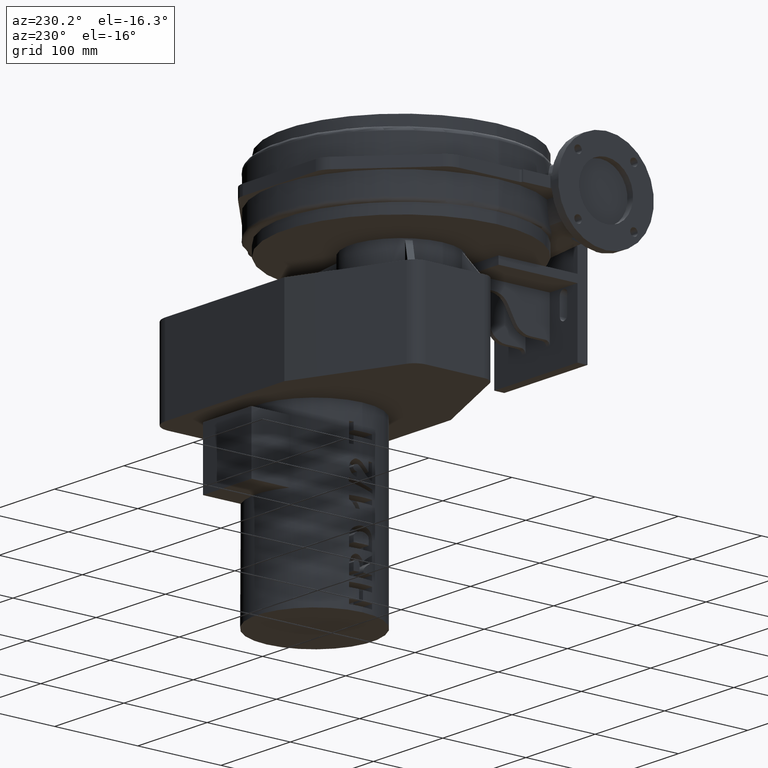
[diagram: clean part render]
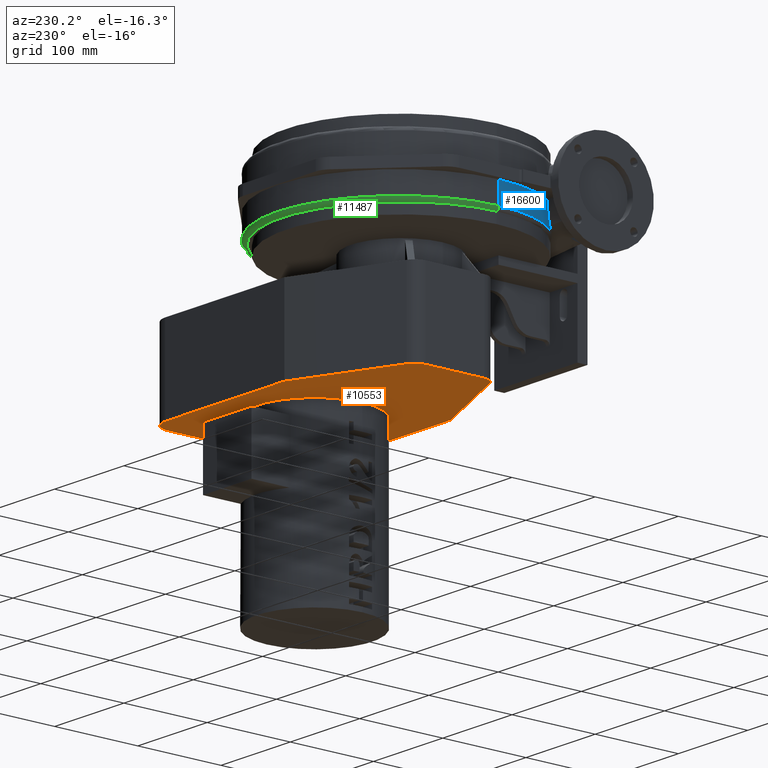
[diagram: same view with three faces highlighted in distinct colors, each labeled with its STEP entity id]
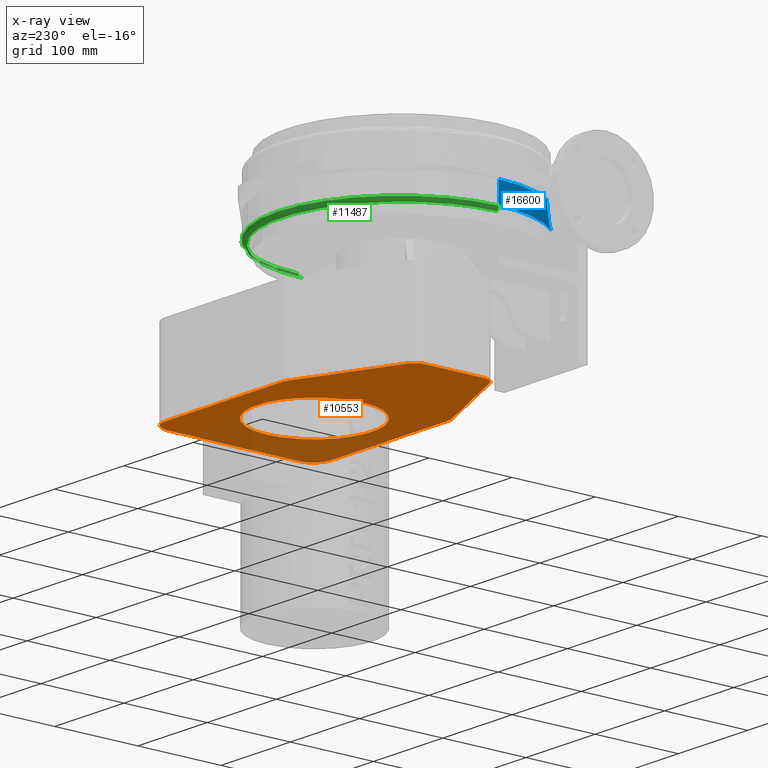
[diagram: x-ray of the same camera — body ghosted, the three highlighted faces saturated]
A machine part, auxiliary view with three faces highlighted in distinct colors.
The next image is the same camera in x-ray (body ghosted, the three faces saturated) — at least one of them is partly hidden behind the body in this view.
Their STEP definitions:

[orange] entity #10553 — the highlighted planar face has unit normal (0, 0, 1).
#1277=CARTESIAN_POINT('',(194.0,8.449784E-015,-176.500000000000000));
#1278=VERTEX_POINT('',#1277);
#1287=CARTESIAN_POINT('',(56.0,8.449784E-015,-176.500000000000000));
#1288=VERTEX_POINT('',#1287);
#1289=CARTESIAN_POINT('',(125.0,7.789082E-029,-176.500000000000000));
#1290=DIRECTION('',(0.0,0.0,1.0));
#1291=DIRECTION('',(1.0,0.0,0.0));
#1292=AXIS2_PLACEMENT_3D('',#1289,#1290,#1291);
#1293=CIRCLE('',#1292,69.0);
#1294=EDGE_CURVE('',#1288,#1278,#1293,.T.);
#5609=CARTESIAN_POINT('',(125.0,7.789082E-029,-176.500000000000000));
#5610=DIRECTION('',(0.0,0.0,1.0));
#5611=DIRECTION('',(1.0,0.0,0.0));
#5612=AXIS2_PLACEMENT_3D('',#5609,#5610,#5611);
#5613=CIRCLE('',#5612,69.0);
#5614=EDGE_CURVE('',#1278,#1288,#5613,.T.);
#10378=CARTESIAN_POINT('',(-77.500000000000014,-35.300512986267947,-176.500000000000000));
#10379=VERTEX_POINT('',#10378);
#10380=CARTESIAN_POINT('',(-67.818629719577089,-50.0,-176.500000000000000));
#10381=VERTEX_POINT('',#10380);
#10382=CARTESIAN_POINT('',(-61.499999999999993,-35.300512986267947,-176.500000000000000));
#10383=DIRECTION('',(0.0,0.0,1.000000000000000));
#10384=DIRECTION('',(-0.394914357473568,-0.918717938358253,0.0));
#10385=AXIS2_PLACEMENT_3D('',#10382,#10383,#10384);
#10386=CIRCLE('',#10385,16.000000000000018);
#10387=EDGE_CURVE('',#10379,#10381,#10386,.T.);
#10468=CARTESIAN_POINT('',(90.695104656668079,43.740582263557911,-176.500000000000000));
#10469=DIRECTION('',(0.0,0.0,1.0));
#10470=DIRECTION('',(1.0,0.0,0.0));
#10471=AXIS2_PLACEMENT_3D('',#10468,#10469,#10470);
#10472=PLANE('',#10471);
#10473=CARTESIAN_POINT('',(48.499999999999979,-100.0,-176.500000000000000));
#10474=VERTEX_POINT('',#10473);
#10475=CARTESIAN_POINT('',(220.500000000000000,-100.0,-176.500000000000000));
#10476=VERTEX_POINT('',#10475);
#10477=CARTESIAN_POINT('',(48.499999999999979,-100.0,-176.500000000000000));
#10478=DIRECTION('',(1.0,0.0,0.0));
#10479=VECTOR('',#10478,172.000000000000030);
#10480=LINE('',#10477,#10479);
#10481=EDGE_CURVE('',#10474,#10476,#10480,.T.);
#10482=ORIENTED_EDGE('',*,*,#10481,.F.);
#10483=CARTESIAN_POINT('',(-67.818629719577089,-50.0,-176.500000000000000));
#10484=DIRECTION('',(0.918717938358253,-0.394914357473568,0.0));
#10485=VECTOR('',#10484,126.609729562305280);
#10486=LINE('',#10483,#10485);
#10487=EDGE_CURVE('',#10381,#10474,#10486,.T.);
#10488=ORIENTED_EDGE('',*,*,#10487,.F.);
#10489=ORIENTED_EDGE('',*,*,#10387,.F.);
#10490=CARTESIAN_POINT('',(-77.500000000000014,35.300512986267947,-176.500000000000000));
#10491=VERTEX_POINT('',#10490);
#10492=CARTESIAN_POINT('',(-77.500000000000014,35.300512986267947,-176.500000000000000));
#10493=DIRECTION('',(0.0,-1.0,0.0));
#10494=VECTOR('',#10493,70.601025972535894);
#10495=LINE('',#10492,#10494);
#10496=EDGE_CURVE('',#10491,#10379,#10495,.T.);
#10497=ORIENTED_EDGE('',*,*,#10496,.F.);
#10498=CARTESIAN_POINT('',(-67.818629719577089,50.0,-176.500000000000000));
#10499=VERTEX_POINT('',#10498);
#10500=CARTESIAN_POINT('',(-61.499999999999993,35.300512986267947,-176.500000000000000));
#10501=DIRECTION('',(0.0,0.0,1.0));
#10502=DIRECTION('',(-1.0,0.0,0.0));
#10503=AXIS2_PLACEMENT_3D('',#10500,#10501,#10502);
#10504=CIRCLE('',#10503,16.000000000000021);
#10505=EDGE_CURVE('',#10499,#10491,#10504,.T.);
#10506=ORIENTED_EDGE('',*,*,#10505,.F.);
#10507=CARTESIAN_POINT('',(48.499999999999979,100.0,-176.500000000000000));
#10508=VERTEX_POINT('',#10507);
#10509=CARTESIAN_POINT('',(48.499999999999979,100.0,-176.500000000000000));
#10510=DIRECTION('',(-0.918717938358253,-0.394914357473568,0.0));
#10511=VECTOR('',#10510,126.609729562305280);
#10512=LINE('',#10509,#10511);
#10513=EDGE_CURVE('',#10508,#10499,#10512,.T.);
#10514=ORIENTED_EDGE('',*,*,#10513,.F.);
#10515=CARTESIAN_POINT('',(220.500000000000000,100.0,-176.500000000000000));
#10516=VERTEX_POINT('',#10515);
#10517=CARTESIAN_POINT('',(220.500000000000000,100.0,-176.500000000000000));
#10518=DIRECTION('',(-1.0,0.0,0.0));
#10519=VECTOR('',#10518,172.000000000000030);
#10520=LINE('',#10517,#10519);
#10521=EDGE_CURVE('',#10516,#10508,#10520,.T.);
#10522=ORIENTED_EDGE('',*,*,#10521,.F.);
#10523=CARTESIAN_POINT('',(242.500000000000000,78.0,-176.500000000000000));
#10524=VERTEX_POINT('',#10523);
#10525=CARTESIAN_POINT('',(220.500000000000000,78.0,-176.500000000000000));
#10526=DIRECTION('',(0.0,0.0,1.0));
#10527=DIRECTION('',(0.0,1.0,0.0));
#10528=AXIS2_PLACEMENT_3D('',#10525,#10526,#10527);
#10529=CIRCLE('',#10528,22.0);
#10530=EDGE_CURVE('',#10524,#10516,#10529,.T.);
#10531=ORIENTED_EDGE('',*,*,#10530,.F.);
#10532=CARTESIAN_POINT('',(242.500000000000000,-78.0,-176.500000000000000));
#10533=VERTEX_POINT('',#10532);
#10534=CARTESIAN_POINT('',(242.500000000000000,-78.0,-176.500000000000000));
#10535=DIRECTION('',(0.0,1.0,0.0));
#10536=VECTOR('',#10535,156.0);
#10537=LINE('',#10534,#10536);
#10538=EDGE_CURVE('',#10533,#10524,#10537,.T.);
#10539=ORIENTED_EDGE('',*,*,#10538,.F.);
#10540=CARTESIAN_POINT('',(220.500000000000000,-78.0,-176.500000000000000));
#10541=DIRECTION('',(0.0,0.0,1.0));
#10542=DIRECTION('',(1.0,0.0,0.0));
#10543=AXIS2_PLACEMENT_3D('',#10540,#10541,#10542);
#10544=CIRCLE('',#10543,22.0);
#10545=EDGE_CURVE('',#10476,#10533,#10544,.T.);
#10546=ORIENTED_EDGE('',*,*,#10545,.F.);
#10547=EDGE_LOOP('',(#10482,#10488,#10489,#10497,#10506,#10514,#10522,#10531,#10539,#10546));
#10548=FACE_OUTER_BOUND('',#10547,.T.);
#10549=ORIENTED_EDGE('',*,*,#1294,.T.);
#10550=ORIENTED_EDGE('',*,*,#5614,.T.);
#10551=EDGE_LOOP('',(#10549,#10550));
#10552=FACE_BOUND('',#10551,.T.);
#10553=ADVANCED_FACE('',(#10548,#10552),#10472,.F.);

[blue] entity #16600 — the highlighted cylindrical surface (partial cylindrical patch) has radius 141 mm, axis along (0, 0, 1).
#8571=CARTESIAN_POINT('',(-140.999999999999940,0.0,-6.000000000000001));
#8572=VERTEX_POINT('',#8571);
#8580=CARTESIAN_POINT('',(-118.284436624245120,-76.744980633816908,-5.999999999999998));
#8581=VERTEX_POINT('',#8580);
#8582=CARTESIAN_POINT('',(0.0,0.0,-6.000000000000001));
#8583=DIRECTION('',(0.0,0.0,-1.0));
#8584=DIRECTION('',(-1.0,0.0,0.0));
#8585=AXIS2_PLACEMENT_3D('',#8582,#8583,#8584);
#8586=CIRCLE('',#8585,141.0);
#8587=EDGE_CURVE('',#8581,#8572,#8586,.T.);
#11468=CARTESIAN_POINT('',(-140.999999999999940,0.0,-31.500000000000004));
#11469=VERTEX_POINT('',#11468);
#11494=CARTESIAN_POINT('',(-140.999999999999940,0.0,-31.500000000000004));
#11495=DIRECTION('',(0.0,0.0,1.0));
#11496=VECTOR('',#11495,25.500000000000004);
#11497=LINE('',#11494,#11496);
#11498=EDGE_CURVE('',#11469,#8572,#11497,.T.);
#13543=CARTESIAN_POINT('',(-112.824771345581240,-84.566961461420050,-28.607534993733360));
#13544=VERTEX_POINT('',#13543);
#13552=CARTESIAN_POINT('',(-109.108871800461630,-89.309876802235181,-31.500000000000004));
#13553=VERTEX_POINT('',#13552);
#13554=CARTESIAN_POINT('',(-109.108871800461590,-89.309876802235181,-31.500000000000004));
#13555=CARTESIAN_POINT('',(-110.421761767303450,-87.705933899061506,-30.671765256037528));
#13556=CARTESIAN_POINT('',(-111.662493414687900,-86.117611260430323,-29.713556547628272));
#13557=CARTESIAN_POINT('',(-112.824771345581270,-84.566961461420050,-28.607534993733353));
#13558=B_SPLINE_CURVE_WITH_KNOTS('',3,(#13554,#13555,#13556,#13557),.UNSPECIFIED.,.F.,.U.,(4,4),(0.0,0.669631027021873),.UNSPECIFIED.);
#13559=EDGE_CURVE('',#13553,#13544,#13558,.T.);
#16240=CARTESIAN_POINT('',(0.0,0.0,-31.500000000000004));
#16241=DIRECTION('',(0.0,0.0,-1.000000000000000));
#16242=DIRECTION('',(-0.707106781186548,-0.707106781186548,0.0));
#16243=AXIS2_PLACEMENT_3D('',#16240,#16241,#16242);
#16244=CIRCLE('',#16243,141.0);
#16245=EDGE_CURVE('',#13553,#11469,#16244,.T.);
#16350=CARTESIAN_POINT('',(-116.309876232275200,-79.705788314464726,-18.352503755766509));
#16351=VERTEX_POINT('',#16350);
#16352=CARTESIAN_POINT('',(-112.824771345581270,-84.566961461420050,-28.607534993733363));
#16353=CARTESIAN_POINT('',(-114.338395065827170,-82.547564675857359,-25.155386294856505));
#16354=CARTESIAN_POINT('',(-115.465553636445920,-80.937857637128900,-21.726897908014809));
#16355=CARTESIAN_POINT('',(-116.309876232275200,-79.705788314464726,-18.352503755766509));
#16356=B_SPLINE_CURVE_WITH_KNOTS('',3,(#16352,#16353,#16354,#16355),.UNSPECIFIED.,.F.,.U.,(4,4),(0.0,1.282876288067960),.UNSPECIFIED.);
#16357=EDGE_CURVE('',#13544,#16351,#16356,.T.);
#16365=CARTESIAN_POINT('',(-116.309876232275200,-79.705788314464726,-18.352503755766509));
#16366=CARTESIAN_POINT('',(-116.956912487069990,-78.761607116280430,-15.766578227707321));
#16367=CARTESIAN_POINT('',(-117.437073749469960,-78.038003613108046,-13.212664945584295));
#16368=CARTESIAN_POINT('',(-117.998206653361490,-77.185337193120503,-9.145107064836683));
#16369=CARTESIAN_POINT('',(-118.164997912480520,-76.929067470708674,-7.575961502139665));
#16370=CARTESIAN_POINT('',(-118.284436624245120,-76.744980633816908,-5.999999999999998));
#16371=B_SPLINE_CURVE_WITH_KNOTS('',3,(#16365,#16366,#16367,#16368,#16369,#16370),.UNSPECIFIED.,.F.,.U.,(4,2,4),(1.282876288067960,2.265992780385969,2.876951331258394),.UNSPECIFIED.);
#16372=EDGE_CURVE('',#16351,#8581,#16371,.T.);
#16587=CARTESIAN_POINT('',(0.0,0.0,0.0));
#16588=DIRECTION('',(0.0,0.0,1.0));
#16589=DIRECTION('',(-1.0,0.0,0.0));
#16590=AXIS2_PLACEMENT_3D('',#16587,#16588,#16589);
#16591=CYLINDRICAL_SURFACE('',#16590,141.0);
#16592=ORIENTED_EDGE('',*,*,#16245,.F.);
#16593=ORIENTED_EDGE('',*,*,#13559,.T.);
#16594=ORIENTED_EDGE('',*,*,#16357,.T.);
#16595=ORIENTED_EDGE('',*,*,#16372,.T.);
#16596=ORIENTED_EDGE('',*,*,#8587,.T.);
#16597=ORIENTED_EDGE('',*,*,#11498,.F.);
#16598=EDGE_LOOP('',(#16592,#16593,#16594,#16595,#16596,#16597));
#16599=FACE_OUTER_BOUND('',#16598,.T.);
#16600=ADVANCED_FACE('',(#16599),#16591,.T.);

[green] entity #11487 — the highlighted toroidal blend (fillet) surface has major radius 140 mm and minor (blend) radius 5 mm.
#1004=CARTESIAN_POINT('',(-138.0,0.0,-36.082575694955779));
#1005=VERTEX_POINT('',#1004);
#8328=CARTESIAN_POINT('',(-117.605545407994040,72.200662665160138,-36.292833331779150));
#8329=VERTEX_POINT('',#8328);
#8330=CARTESIAN_POINT('',(-117.605545407994040,72.200662665160138,-36.292833331779150));
#8331=CARTESIAN_POINT('',(-122.146920603400120,64.803349579060352,-36.254661323872583));
#8332=CARTESIAN_POINT('',(-125.991452202615360,56.975804725503295,-36.216835952387676));
#8333=CARTESIAN_POINT('',(-133.618200826606820,36.809881495021344,-36.136505330640311));
#8334=CARTESIAN_POINT('',(-136.461765934797510,24.227673074179652,-36.101361145750815));
#8335=CARTESIAN_POINT('',(-137.841929148687510,7.628291984416265,-36.084526641523468));
#8336=CARTESIAN_POINT('',(-138.0,3.813472797503458,-36.082575694955779));
#8337=CARTESIAN_POINT('',(-138.0,0.0,-36.082575694955779));
#8338=B_SPLINE_CURVE_WITH_KNOTS('',3,(#8330,#8331,#8332,#8333,#8334,#8335,#8336,#8337),.UNSPECIFIED.,.F.,.U.,(4,2,2,4),(-10.675311962150626,-10.015905578643704,-9.045483297033737,-8.756753006412518),.UNSPECIFIED.);
#8339=EDGE_CURVE('',#8329,#1005,#8338,.T.);
#8341=CARTESIAN_POINT('',(-113.793072162888820,78.071356640778134,-36.323578321053212));
#8342=VERTEX_POINT('',#8341);
#8343=CARTESIAN_POINT('',(-113.793072162888820,78.071356640778134,-36.323578321053212));
#8344=CARTESIAN_POINT('',(-115.113452813243920,76.146833011456948,-36.313378140478164));
#8345=CARTESIAN_POINT('',(-116.384680814945340,74.189293254337343,-36.303095168974593));
#8346=CARTESIAN_POINT('',(-117.605545407994040,72.200662665160138,-36.292833331779150));
#8347=B_SPLINE_CURVE_WITH_KNOTS('',3,(#8343,#8344,#8345,#8346),.UNSPECIFIED.,.F.,.U.,(4,4),(-10.852581152960552,-10.675311962150626),.UNSPECIFIED.);
#8348=EDGE_CURVE('',#8342,#8329,#8347,.T.);
#8350=CARTESIAN_POINT('',(-67.499999999998906,120.365069683858620,-36.500000000000057));
#8351=VERTEX_POINT('',#8350);
#8352=CARTESIAN_POINT('',(-67.499999999998906,120.365069683858620,-36.500000000000057));
#8353=CARTESIAN_POINT('',(-79.525715673404719,113.621121376538890,-36.500000000000050));
#8354=CARTESIAN_POINT('',(-90.486634083584477,105.105140141070810,-36.464469979567703));
#8355=CARTESIAN_POINT('',(-105.058537875417100,89.779891736578719,-36.386545034043436));
#8356=CARTESIAN_POINT('',(-109.665920565734910,84.086895241996899,-36.355461317475680));
#8357=CARTESIAN_POINT('',(-113.793072162888820,78.071356640778134,-36.323578321053212));
#8358=B_SPLINE_CURVE_WITH_KNOTS('',3,(#8352,#8353,#8354,#8355,#8356,#8357),.UNSPECIFIED.,.F.,.U.,(4,2,4),(-12.451209824300459,-11.406676537333691,-10.852581152960552),.UNSPECIFIED.);
#8359=EDGE_CURVE('',#8351,#8342,#8358,.T.);
#8380=CARTESIAN_POINT('',(144.0,-3.271300E-018,-36.500000000000000));
#8381=VERTEX_POINT('',#8380);
#8397=CARTESIAN_POINT('',(4.0,0.0,-36.500000000000000));
#8398=DIRECTION('',(0.0,0.0,1.0));
#8399=DIRECTION('',(0.0,1.0,0.0));
#8400=AXIS2_PLACEMENT_3D('',#8397,#8398,#8399);
#8401=CIRCLE('',#8400,139.999999999999970);
#8402=EDGE_CURVE('',#8381,#8351,#8401,.T.);
#8412=CARTESIAN_POINT('',(149.000000000000200,0.0,-31.500000000000004));
#8413=VERTEX_POINT('',#8412);
#8431=CARTESIAN_POINT('',(144.0,-3.271300E-018,-31.500000000000004));
#8432=DIRECTION('',(0.0,1.0,0.0));
#8433=DIRECTION('',(1.0,0.0,0.0));
#8434=AXIS2_PLACEMENT_3D('',#8431,#8432,#8433);
#8435=CIRCLE('',#8434,5.000000000000213);
#8436=EDGE_CURVE('',#8413,#8381,#8435,.T.);
#11459=CARTESIAN_POINT('',(4.0,0.0,-31.500000000000004));
#11460=DIRECTION('',(0.0,0.0,1.0));
#11461=DIRECTION('',(1.0,0.0,0.0));
#11462=AXIS2_PLACEMENT_3D('',#11459,#11460,#11461);
#11463=TOROIDAL_SURFACE('',#11462,139.999999999999970,5.0);
#11464=ORIENTED_EDGE('',*,*,#8402,.T.);
#11465=ORIENTED_EDGE('',*,*,#8359,.T.);
#11466=ORIENTED_EDGE('',*,*,#8348,.T.);
#11467=ORIENTED_EDGE('',*,*,#8339,.T.);
#11468=CARTESIAN_POINT('',(-140.999999999999940,0.0,-31.500000000000004));
#11469=VERTEX_POINT('',#11468);
#11470=CARTESIAN_POINT('',(-136.0,0.0,-31.500000000000004));
#11471=DIRECTION('',(0.0,-1.0,0.0));
#11472=DIRECTION('',(-1.0,0.0,0.0));
#11473=AXIS2_PLACEMENT_3D('',#11470,#11471,#11472);
#11474=CIRCLE('',#11473,4.999999999999947);
#11475=EDGE_CURVE('',#11469,#1005,#11474,.T.);
#11476=ORIENTED_EDGE('',*,*,#11475,.F.);
#11477=CARTESIAN_POINT('',(4.0,0.0,-31.500000000000004));
#11478=DIRECTION('',(0.0,0.0,-1.0));
#11479=DIRECTION('',(0.0,1.0,0.0));
#11480=AXIS2_PLACEMENT_3D('',#11477,#11478,#11479);
#11481=CIRCLE('',#11480,144.999999999999970);
#11482=EDGE_CURVE('',#11469,#8413,#11481,.T.);
#11483=ORIENTED_EDGE('',*,*,#11482,.T.);
#11484=ORIENTED_EDGE('',*,*,#8436,.T.);
#11485=EDGE_LOOP('',(#11464,#11465,#11466,#11467,#11476,#11483,#11484));
#11486=FACE_OUTER_BOUND('',#11485,.T.);
#11487=ADVANCED_FACE('',(#11486),#11463,.T.);